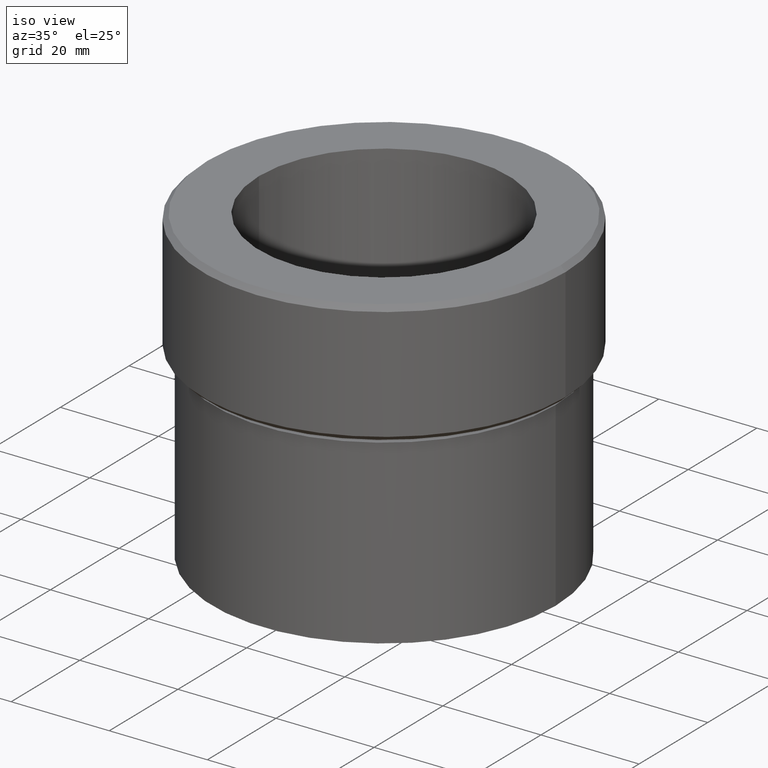
[diagram: clean part render]
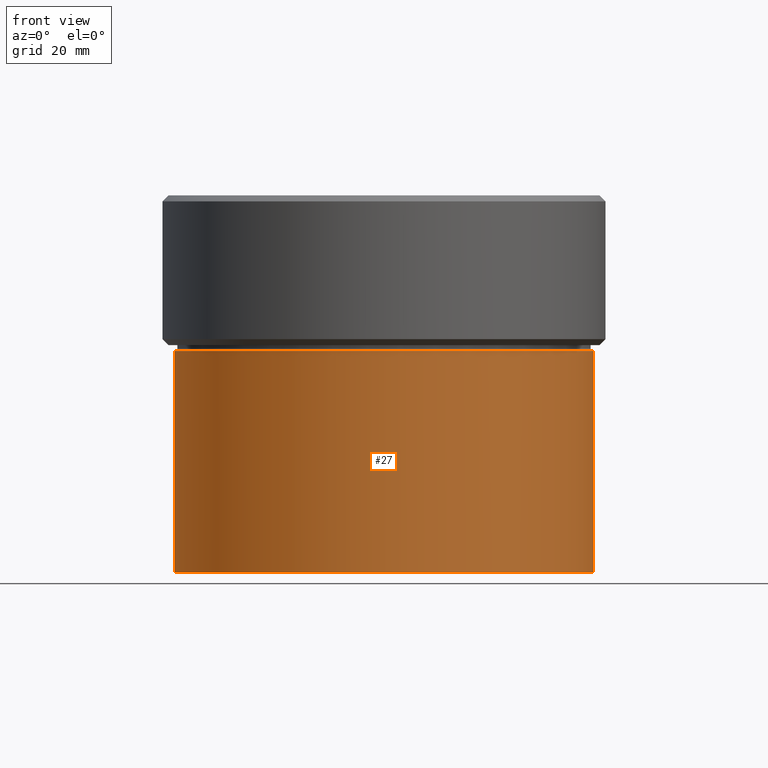
[diagram: tour spotlight — one face highlighted and labeled with its STEP entity id]
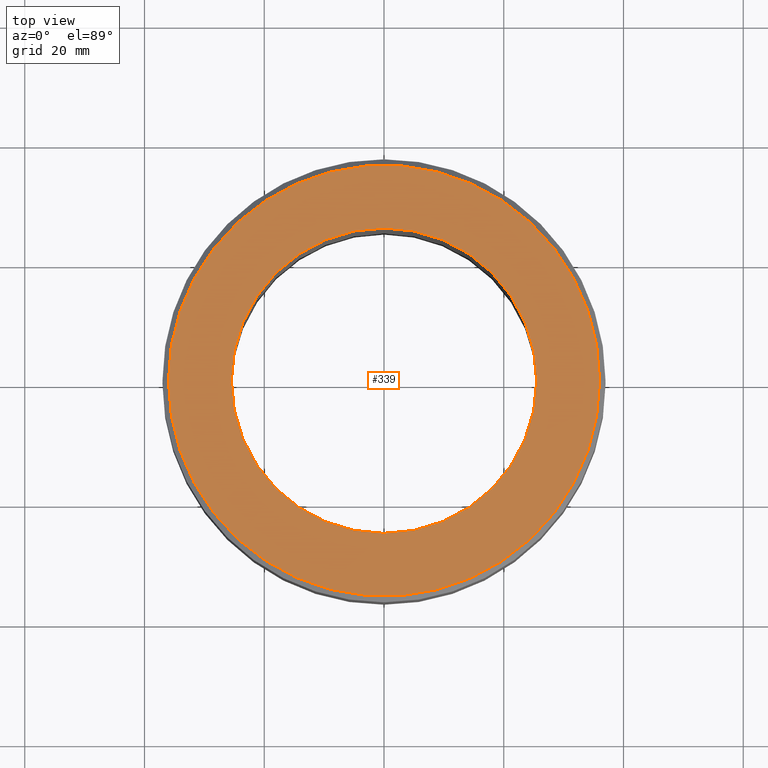
[diagram: tour spotlight — one face highlighted and labeled with its STEP entity id]
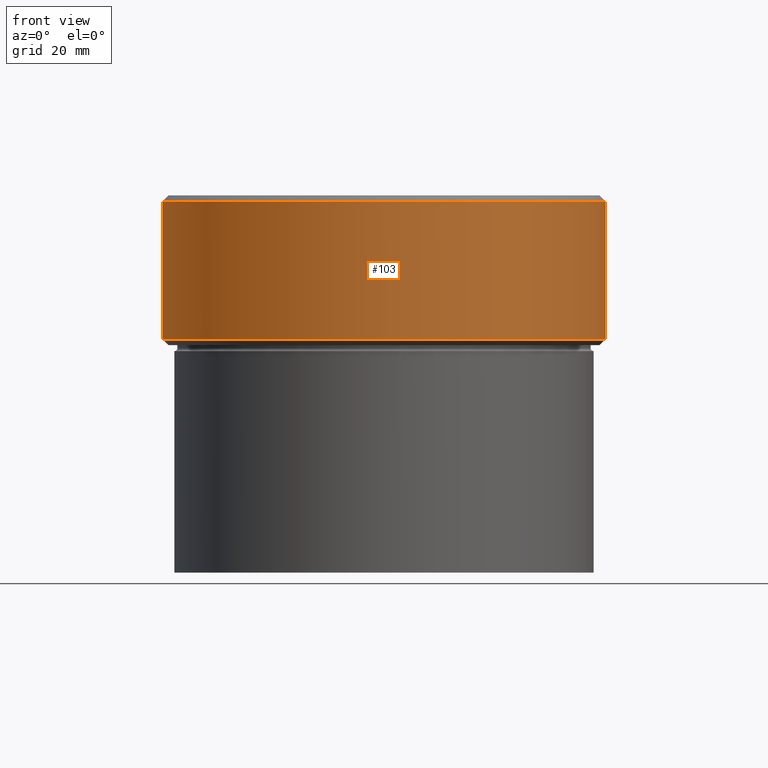
[diagram: tour spotlight — one face highlighted and labeled with its STEP entity id]
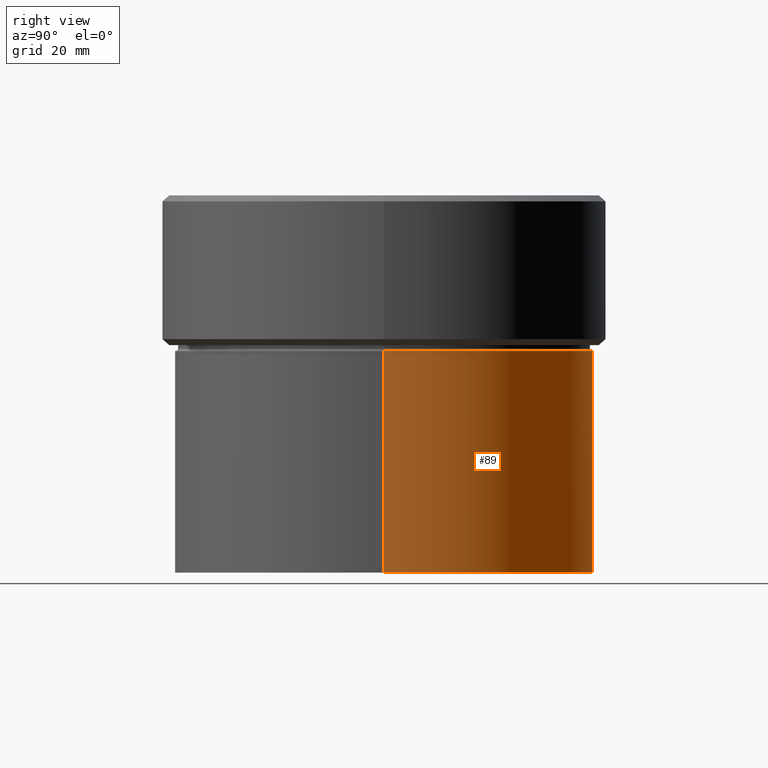
[diagram: tour spotlight — one face highlighted and labeled with its STEP entity id]
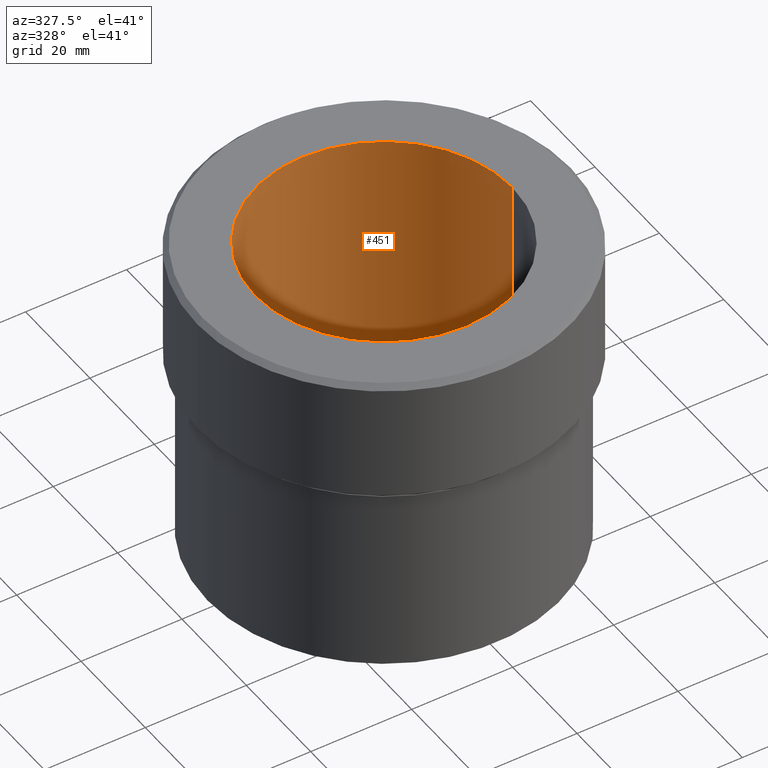
[diagram: tour spotlight — one face highlighted and labeled with its STEP entity id]
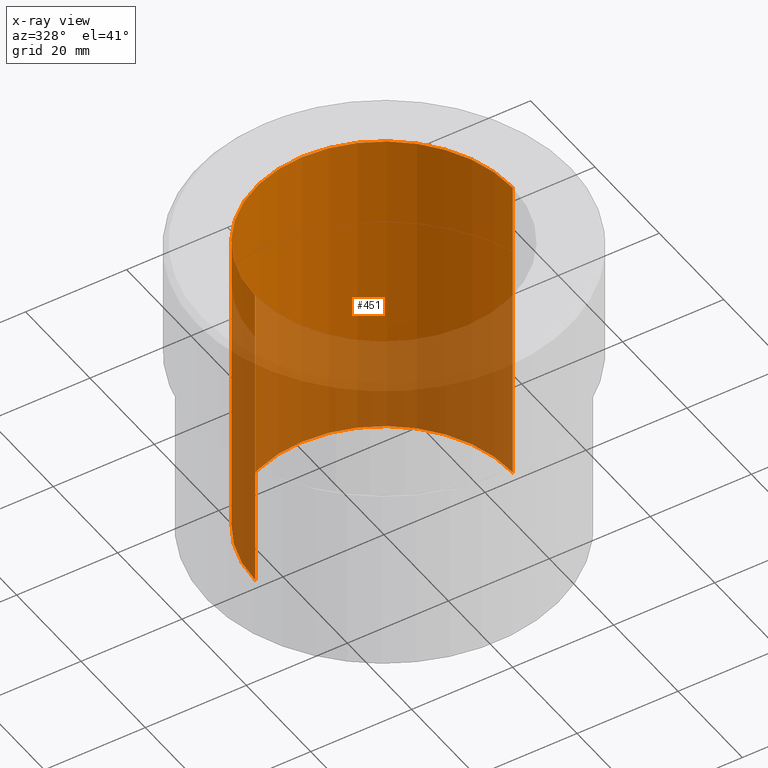
[diagram: x-ray of the same camera — body ghosted, this tour face saturated]
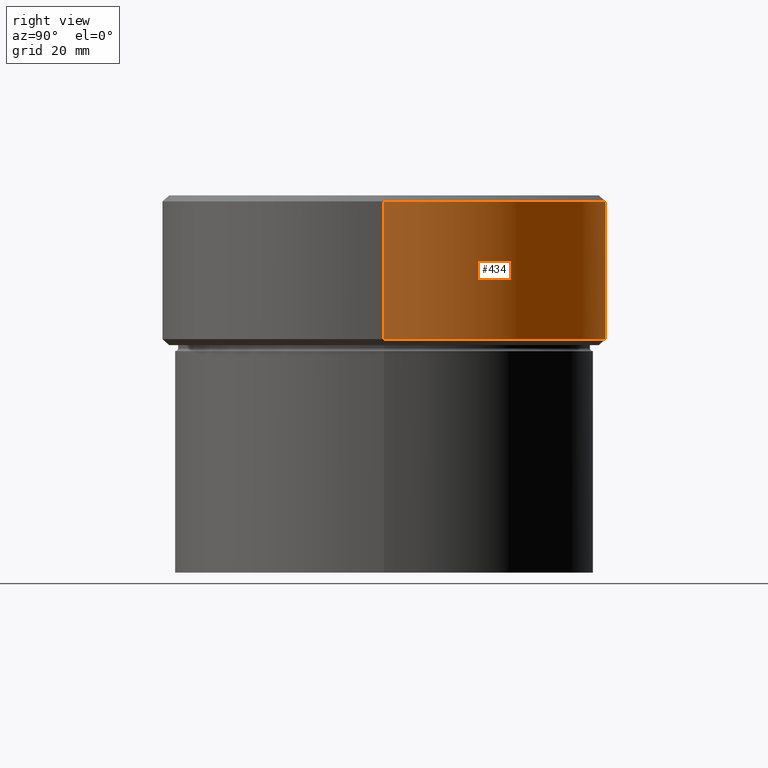
[diagram: tour spotlight — one face highlighted and labeled with its STEP entity id]
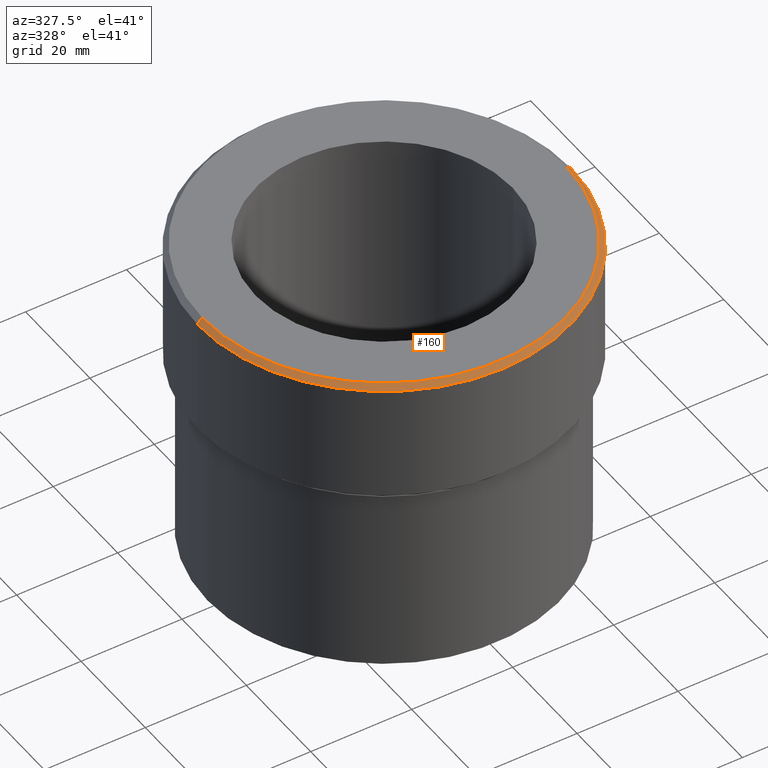
[diagram: tour spotlight — one face highlighted and labeled with its STEP entity id]
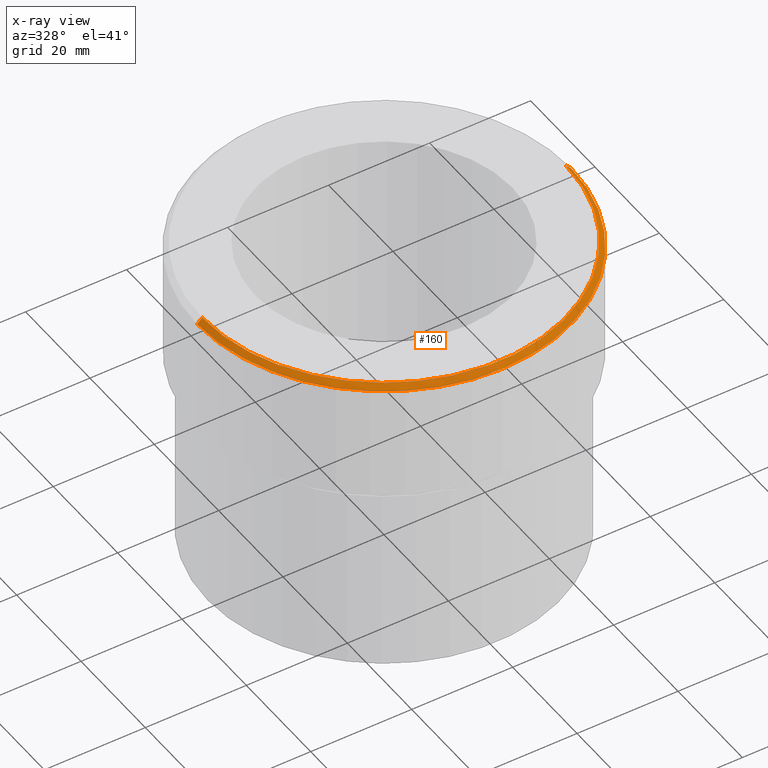
[diagram: x-ray of the same camera — body ghosted, this tour face saturated]
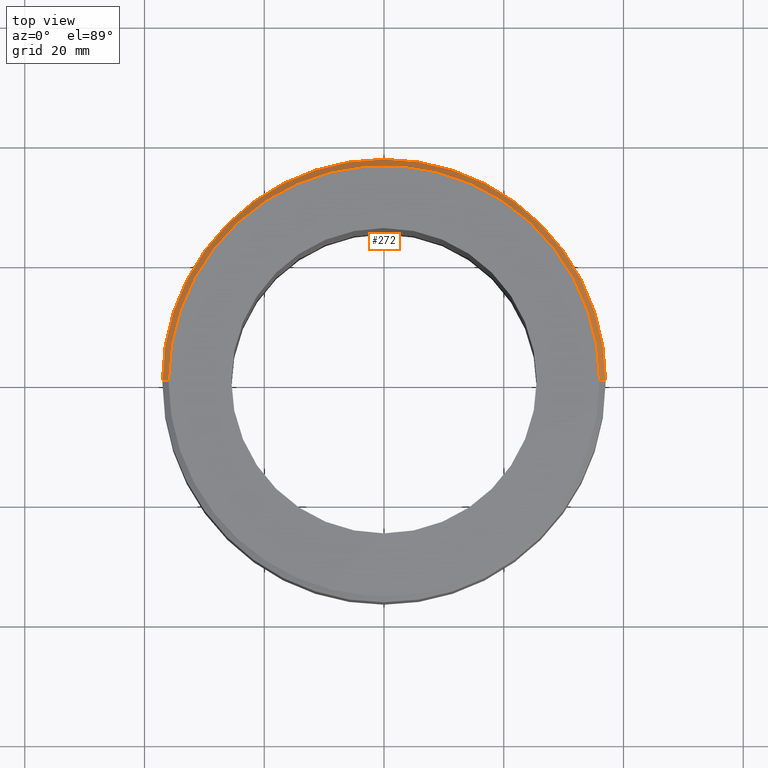
[diagram: tour spotlight — one face highlighted and labeled with its STEP entity id]
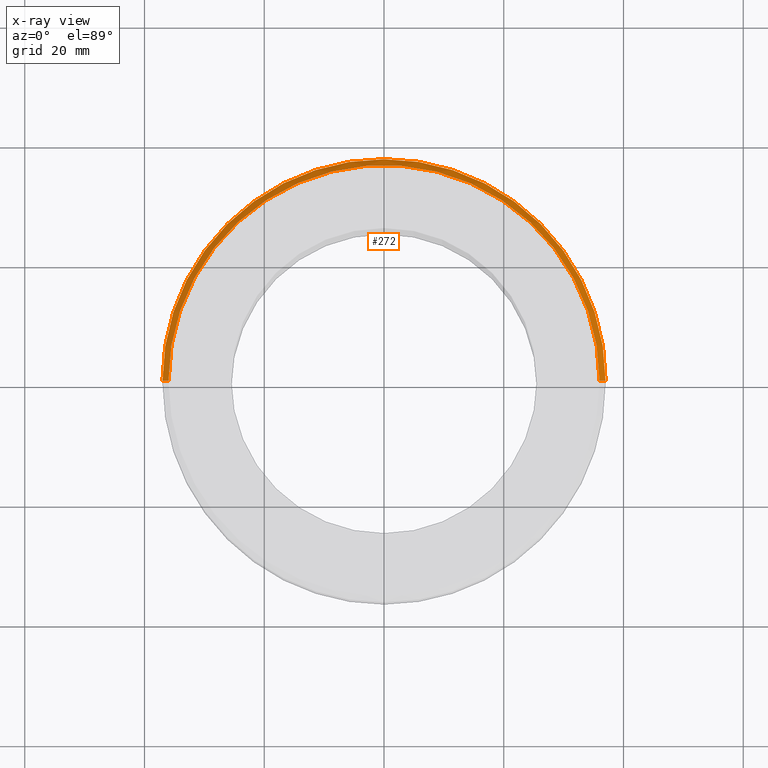
[diagram: x-ray of the same camera — body ghosted, this tour face saturated]
A machine part: a face-by-face anatomy tour. The part has 17 B-rep faces; the first image is the clean iso view, then the 8 largest visible faces are spotlighted one at a time (largest first), each with its STEP entity span.

Face 1 — front view, entity #27. In plain terms, the highlighted cylindrical surface (partial cylindrical patch) has radius 35 mm, axis along (-0, -0, 1).
Definition (entity closure, byte-faithful):
#19 = CARTESIAN_POINT ( 'NONE',  ( -35.00000000000000000, 4.286263797015736496E-15, -63.00000000000000000 ) ) ;
#20 = VECTOR ( 'NONE', #241, 1000.000000000000000 ) ;
#27 = ADVANCED_FACE ( 'NONE', ( #336 ), #296, .T. ) ;
#45 = LINE ( 'NONE', #450, #20 ) ;
#64 = VECTOR ( 'NONE', #484, 1000.000000000000000 ) ;
#81 = ORIENTED_EDGE ( 'NONE', *, *, #514, .F. ) ;
#82 = DIRECTION ( 'NONE',  ( 1.000000000000000000, 0.000000000000000000, 0.000000000000000000 ) ) ;
#101 = DIRECTION ( 'NONE',  ( 1.000000000000000000, 0.000000000000000000, 0.000000000000000000 ) ) ;
#139 = AXIS2_PLACEMENT_3D ( 'NONE', #408, #163, #82 ) ;
#143 = DIRECTION ( 'NONE',  ( 1.000000000000000000, 0.000000000000000000, 0.000000000000000000 ) ) ;
#155 = VERTEX_POINT ( 'NONE', #19 ) ;
#162 = ORIENTED_EDGE ( 'NONE', *, *, #440, .F. ) ;
#163 = DIRECTION ( 'NONE',  ( -0.000000000000000000, -0.000000000000000000, 1.000000000000000000 ) ) ;
#165 = EDGE_LOOP ( 'NONE', ( #162, #287, #238, #81 ) ) ;
#193 = CARTESIAN_POINT ( 'NONE',  ( 35.00000000000000000, 0.000000000000000000, -63.00000000000000000 ) ) ;
#197 = VERTEX_POINT ( 'NONE', #348 ) ;
#211 = AXIS2_PLACEMENT_3D ( 'NONE', #487, #214, #101 ) ;
#214 = DIRECTION ( 'NONE',  ( -0.000000000000000000, -0.000000000000000000, 1.000000000000000000 ) ) ;
#229 = CARTESIAN_POINT ( 'NONE',  ( 35.00000000000000000, 0.000000000000000000, 0.000000000000000000 ) ) ;
#233 = VERTEX_POINT ( 'NONE', #239 ) ;
#238 = ORIENTED_EDGE ( 'NONE', *, *, #309, .T. ) ;
#239 = CARTESIAN_POINT ( 'NONE',  ( 35.00000000000000000, 0.000000000000000000, -26.00000000000000000 ) ) ;
#241 = DIRECTION ( 'NONE',  ( -0.000000000000000000, -0.000000000000000000, 1.000000000000000000 ) ) ;
#262 = CIRCLE ( 'NONE', #139, 35.00000000000000000 ) ;
#287 = ORIENTED_EDGE ( 'NONE', *, *, #357, .T. ) ;
#292 = AXIS2_PLACEMENT_3D ( 'NONE', #343, #504, #143 ) ;
#296 = CYLINDRICAL_SURFACE ( 'NONE', #292, 35.00000000000000000 ) ;
#309 = EDGE_CURVE ( 'NONE', #331, #233, #356, .T. ) ;
#331 = VERTEX_POINT ( 'NONE', #193 ) ;
#336 = FACE_OUTER_BOUND ( 'NONE', #165, .T. ) ;
#343 = CARTESIAN_POINT ( 'NONE',  ( 0.000000000000000000, 0.000000000000000000, 0.000000000000000000 ) ) ;
#348 = CARTESIAN_POINT ( 'NONE',  ( -35.00000000000000000, 4.286263797015736496E-15, -26.00000000000000000 ) ) ;
#356 = LINE ( 'NONE', #229, #64 ) ;
#357 = EDGE_CURVE ( 'NONE', #155, #331, #262, .T. ) ;
#408 = CARTESIAN_POINT ( 'NONE',  ( 0.000000000000000000, 0.000000000000000000, -63.00000000000000000 ) ) ;
#440 = EDGE_CURVE ( 'NONE', #155, #197, #45, .T. ) ;
#446 = CIRCLE ( 'NONE', #211, 35.00000000000000000 ) ;
#450 = CARTESIAN_POINT ( 'NONE',  ( -35.00000000000000000, 4.286263797015736496E-15, 0.000000000000000000 ) ) ;
#484 = DIRECTION ( 'NONE',  ( -0.000000000000000000, -0.000000000000000000, 1.000000000000000000 ) ) ;
#487 = CARTESIAN_POINT ( 'NONE',  ( 0.000000000000000000, 0.000000000000000000, -26.00000000000000000 ) ) ;
#504 = DIRECTION ( 'NONE',  ( -0.000000000000000000, -0.000000000000000000, 1.000000000000000000 ) ) ;
#514 = EDGE_CURVE ( 'NONE', #197, #233, #446, .T. ) ;

Face 2 — top view, entity #339. In plain terms, the highlighted planar face has unit normal (0, -0, 1).
Definition (entity closure, byte-faithful):
#8 = ORIENTED_EDGE ( 'NONE', *, *, #285, .F. ) ;
#23 = FACE_OUTER_BOUND ( 'NONE', #148, .T. ) ;
#41 = VERTEX_POINT ( 'NONE', #53 ) ;
#53 = CARTESIAN_POINT ( 'NONE',  ( 36.00000000000002132, 4.469960816887840007E-15, 0.000000000000000000 ) ) ;
#66 = CARTESIAN_POINT ( 'NONE',  ( 25.50000000000000000, 0.000000000000000000, 0.000000000000000000 ) ) ;
#69 = EDGE_CURVE ( 'NONE', #313, #274, #444, .T. ) ;
#76 = CARTESIAN_POINT ( 'NONE',  ( -25.50000000000000000, 3.122849337825750222E-15, 0.000000000000000000 ) ) ;
#90 = DIRECTION ( 'NONE',  ( -0.000000000000000000, -0.000000000000000000, 1.000000000000000000 ) ) ;
#116 = ORIENTED_EDGE ( 'NONE', *, *, #69, .F. ) ;
#148 = EDGE_LOOP ( 'NONE', ( #481, #368 ) ) ;
#150 = VERTEX_POINT ( 'NONE', #383 ) ;
#178 = EDGE_CURVE ( 'NONE', #41, #150, #494, .T. ) ;
#182 = AXIS2_PLACEMENT_3D ( 'NONE', #298, #215, #380 ) ;
#215 = DIRECTION ( 'NONE',  ( -0.000000000000000000, -0.000000000000000000, 1.000000000000000000 ) ) ;
#225 = AXIS2_PLACEMENT_3D ( 'NONE', #435, #314, #447 ) ;
#237 = DIRECTION ( 'NONE',  ( -0.000000000000000000, -0.000000000000000000, 1.000000000000000000 ) ) ;
#258 = DIRECTION ( 'NONE',  ( 1.000000000000000000, 0.000000000000000000, 0.000000000000000000 ) ) ;
#260 = EDGE_CURVE ( 'NONE', #150, #41, #361, .T. ) ;
#270 = DIRECTION ( 'NONE',  ( 0.000000000000000000, -0.000000000000000000, 1.000000000000000000 ) ) ;
#274 = VERTEX_POINT ( 'NONE', #66 ) ;
#280 = AXIS2_PLACEMENT_3D ( 'NONE', #346, #90, #258 ) ;
#285 = EDGE_CURVE ( 'NONE', #274, #313, #426, .T. ) ;
#298 = CARTESIAN_POINT ( 'NONE',  ( 0.000000000000000000, 0.000000000000000000, 0.000000000000000000 ) ) ;
#310 = CARTESIAN_POINT ( 'NONE',  ( 0.000000000000000000, 0.000000000000000000, 0.000000000000000000 ) ) ;
#313 = VERTEX_POINT ( 'NONE', #76 ) ;
#314 = DIRECTION ( 'NONE',  ( -0.000000000000000000, -0.000000000000000000, 1.000000000000000000 ) ) ;
#339 = ADVANCED_FACE ( 'NONE', ( #525, #23 ), #519, .T. ) ;
#346 = CARTESIAN_POINT ( 'NONE',  ( 0.000000000000000000, 0.000000000000000000, 0.000000000000000000 ) ) ;
#361 = CIRCLE ( 'NONE', #369, 36.00000000000002132 ) ;
#368 = ORIENTED_EDGE ( 'NONE', *, *, #178, .T. ) ;
#369 = AXIS2_PLACEMENT_3D ( 'NONE', #517, #237, #521 ) ;
#380 = DIRECTION ( 'NONE',  ( 1.000000000000000000, 0.000000000000000000, 0.000000000000000000 ) ) ;
#383 = CARTESIAN_POINT ( 'NONE',  ( -36.00000000000002132, 0.000000000000000000, 0.000000000000000000 ) ) ;
#415 = AXIS2_PLACEMENT_3D ( 'NONE', #310, #270, #438 ) ;
#426 = CIRCLE ( 'NONE', #225, 25.50000000000000000 ) ;
#435 = CARTESIAN_POINT ( 'NONE',  ( 0.000000000000000000, 0.000000000000000000, 0.000000000000000000 ) ) ;
#438 = DIRECTION ( 'NONE',  ( 1.000000000000000000, 0.000000000000000000, 0.000000000000000000 ) ) ;
#444 = CIRCLE ( 'NONE', #182, 25.50000000000000000 ) ;
#447 = DIRECTION ( 'NONE',  ( 1.000000000000000000, 0.000000000000000000, 0.000000000000000000 ) ) ;
#481 = ORIENTED_EDGE ( 'NONE', *, *, #260, .T. ) ;
#488 = EDGE_LOOP ( 'NONE', ( #8, #116 ) ) ;
#494 = CIRCLE ( 'NONE', #280, 36.00000000000002132 ) ;
#517 = CARTESIAN_POINT ( 'NONE',  ( 0.000000000000000000, 0.000000000000000000, 0.000000000000000000 ) ) ;
#519 = PLANE ( 'NONE',  #415 ) ;
#521 = DIRECTION ( 'NONE',  ( 1.000000000000000000, 0.000000000000000000, 0.000000000000000000 ) ) ;
#525 = FACE_BOUND ( 'NONE', #488, .T. ) ;

Face 3 — front view, entity #103. In plain terms, the highlighted cylindrical surface (partial cylindrical patch) has radius 37 mm, axis along (-0, -0, 1).
Definition (entity closure, byte-faithful):
#4 = EDGE_CURVE ( 'NONE', #83, #497, #168, .T. ) ;
#6 = ORIENTED_EDGE ( 'NONE', *, *, #334, .T. ) ;
#9 = DIRECTION ( 'NONE',  ( 1.000000000000000000, 0.000000000000000000, 0.000000000000000000 ) ) ;
#21 = AXIS2_PLACEMENT_3D ( 'NONE', #22, #100, #174 ) ;
#22 = CARTESIAN_POINT ( 'NONE',  ( 0.000000000000000000, 0.000000000000000000, 0.000000000000000000 ) ) ;
#31 = VERTEX_POINT ( 'NONE', #263 ) ;
#36 = ORIENTED_EDGE ( 'NONE', *, *, #4, .F. ) ;
#59 = EDGE_CURVE ( 'NONE', #83, #390, #254, .T. ) ;
#83 = VERTEX_POINT ( 'NONE', #378 ) ;
#100 = DIRECTION ( 'NONE',  ( -0.000000000000000000, -0.000000000000000000, 1.000000000000000000 ) ) ;
#103 = ADVANCED_FACE ( 'NONE', ( #427 ), #387, .T. ) ;
#127 = EDGE_LOOP ( 'NONE', ( #36, #375, #6, #311 ) ) ;
#158 = CARTESIAN_POINT ( 'NONE',  ( 0.000000000000000000, 0.000000000000000000, -0.9999999999999870104 ) ) ;
#168 = LINE ( 'NONE', #321, #460 ) ;
#174 = DIRECTION ( 'NONE',  ( 1.000000000000000000, 0.000000000000000000, 0.000000000000000000 ) ) ;
#226 = AXIS2_PLACEMENT_3D ( 'NONE', #305, #513, #467 ) ;
#244 = CARTESIAN_POINT ( 'NONE',  ( 37.00000000000000000, 0.000000000000000000, -23.99999999999997158 ) ) ;
#252 = VECTOR ( 'NONE', #307, 1000.000000000000000 ) ;
#254 = CIRCLE ( 'NONE', #226, 37.00000000000000000 ) ;
#263 = CARTESIAN_POINT ( 'NONE',  ( 37.00000000000000000, 0.000000000000000000, -0.9999999999999870104 ) ) ;
#301 = AXIS2_PLACEMENT_3D ( 'NONE', #158, #490, #9 ) ;
#305 = CARTESIAN_POINT ( 'NONE',  ( 0.000000000000000000, 0.000000000000000000, -23.99999999999997158 ) ) ;
#307 = DIRECTION ( 'NONE',  ( -0.000000000000000000, -0.000000000000000000, 1.000000000000000000 ) ) ;
#311 = ORIENTED_EDGE ( 'NONE', *, *, #457, .T. ) ;
#316 = CIRCLE ( 'NONE', #301, 37.00000000000000000 ) ;
#321 = CARTESIAN_POINT ( 'NONE',  ( -37.00000000000000000, 4.531193156845206793E-15, 0.000000000000000000 ) ) ;
#334 = EDGE_CURVE ( 'NONE', #390, #31, #476, .T. ) ;
#359 = CARTESIAN_POINT ( 'NONE',  ( 37.00000000000000000, 0.000000000000000000, 0.000000000000000000 ) ) ;
#375 = ORIENTED_EDGE ( 'NONE', *, *, #59, .T. ) ;
#378 = CARTESIAN_POINT ( 'NONE',  ( -37.00000000000000000, 4.531193156845206793E-15, -23.99999999999997158 ) ) ;
#387 = CYLINDRICAL_SURFACE ( 'NONE', #21, 37.00000000000000000 ) ;
#390 = VERTEX_POINT ( 'NONE', #244 ) ;
#403 = DIRECTION ( 'NONE',  ( -0.000000000000000000, -0.000000000000000000, 1.000000000000000000 ) ) ;
#404 = CARTESIAN_POINT ( 'NONE',  ( -37.00000000000000000, 4.531193156845206793E-15, -0.9999999999999870104 ) ) ;
#427 = FACE_OUTER_BOUND ( 'NONE', #127, .T. ) ;
#457 = EDGE_CURVE ( 'NONE', #31, #497, #316, .T. ) ;
#460 = VECTOR ( 'NONE', #403, 1000.000000000000000 ) ;
#467 = DIRECTION ( 'NONE',  ( -1.000000000000000000, 0.000000000000000000, 0.000000000000000000 ) ) ;
#476 = LINE ( 'NONE', #359, #252 ) ;
#490 = DIRECTION ( 'NONE',  ( 0.000000000000000000, 0.000000000000000000, -1.000000000000000000 ) ) ;
#497 = VERTEX_POINT ( 'NONE', #404 ) ;
#513 = DIRECTION ( 'NONE',  ( -0.000000000000000000, -0.000000000000000000, 1.000000000000000000 ) ) ;

Face 4 — right view, entity #89. In plain terms, the highlighted cylindrical surface (partial cylindrical patch) has radius 35 mm, axis along (-0, -0, 1).
Definition (entity closure, byte-faithful):
#13 = EDGE_CURVE ( 'NONE', #233, #197, #140, .T. ) ;
#19 = CARTESIAN_POINT ( 'NONE',  ( -35.00000000000000000, 4.286263797015736496E-15, -63.00000000000000000 ) ) ;
#20 = VECTOR ( 'NONE', #241, 1000.000000000000000 ) ;
#26 = CARTESIAN_POINT ( 'NONE',  ( 0.000000000000000000, 0.000000000000000000, -63.00000000000000000 ) ) ;
#34 = DIRECTION ( 'NONE',  ( 1.000000000000000000, 0.000000000000000000, 0.000000000000000000 ) ) ;
#38 = DIRECTION ( 'NONE',  ( 1.000000000000000000, 0.000000000000000000, 0.000000000000000000 ) ) ;
#44 = EDGE_LOOP ( 'NONE', ( #358, #520, #109, #105 ) ) ;
#45 = LINE ( 'NONE', #450, #20 ) ;
#64 = VECTOR ( 'NONE', #484, 1000.000000000000000 ) ;
#89 = ADVANCED_FACE ( 'NONE', ( #261 ), #306, .T. ) ;
#105 = ORIENTED_EDGE ( 'NONE', *, *, #309, .F. ) ;
#109 = ORIENTED_EDGE ( 'NONE', *, *, #13, .F. ) ;
#112 = CIRCLE ( 'NONE', #486, 35.00000000000000000 ) ;
#133 = CARTESIAN_POINT ( 'NONE',  ( 0.000000000000000000, 0.000000000000000000, 0.000000000000000000 ) ) ;
#140 = CIRCLE ( 'NONE', #414, 35.00000000000000000 ) ;
#155 = VERTEX_POINT ( 'NONE', #19 ) ;
#193 = CARTESIAN_POINT ( 'NONE',  ( 35.00000000000000000, 0.000000000000000000, -63.00000000000000000 ) ) ;
#197 = VERTEX_POINT ( 'NONE', #348 ) ;
#229 = CARTESIAN_POINT ( 'NONE',  ( 35.00000000000000000, 0.000000000000000000, 0.000000000000000000 ) ) ;
#233 = VERTEX_POINT ( 'NONE', #239 ) ;
#239 = CARTESIAN_POINT ( 'NONE',  ( 35.00000000000000000, 0.000000000000000000, -26.00000000000000000 ) ) ;
#241 = DIRECTION ( 'NONE',  ( -0.000000000000000000, -0.000000000000000000, 1.000000000000000000 ) ) ;
#261 = FACE_OUTER_BOUND ( 'NONE', #44, .T. ) ;
#267 = AXIS2_PLACEMENT_3D ( 'NONE', #133, #465, #509 ) ;
#306 = CYLINDRICAL_SURFACE ( 'NONE', #267, 35.00000000000000000 ) ;
#309 = EDGE_CURVE ( 'NONE', #331, #233, #356, .T. ) ;
#323 = EDGE_CURVE ( 'NONE', #331, #155, #112, .T. ) ;
#331 = VERTEX_POINT ( 'NONE', #193 ) ;
#348 = CARTESIAN_POINT ( 'NONE',  ( -35.00000000000000000, 4.286263797015736496E-15, -26.00000000000000000 ) ) ;
#351 = DIRECTION ( 'NONE',  ( -0.000000000000000000, -0.000000000000000000, 1.000000000000000000 ) ) ;
#356 = LINE ( 'NONE', #229, #64 ) ;
#358 = ORIENTED_EDGE ( 'NONE', *, *, #323, .T. ) ;
#409 = CARTESIAN_POINT ( 'NONE',  ( 0.000000000000000000, 0.000000000000000000, -26.00000000000000000 ) ) ;
#414 = AXIS2_PLACEMENT_3D ( 'NONE', #409, #531, #38 ) ;
#440 = EDGE_CURVE ( 'NONE', #155, #197, #45, .T. ) ;
#450 = CARTESIAN_POINT ( 'NONE',  ( -35.00000000000000000, 4.286263797015736496E-15, 0.000000000000000000 ) ) ;
#465 = DIRECTION ( 'NONE',  ( -0.000000000000000000, -0.000000000000000000, 1.000000000000000000 ) ) ;
#484 = DIRECTION ( 'NONE',  ( -0.000000000000000000, -0.000000000000000000, 1.000000000000000000 ) ) ;
#486 = AXIS2_PLACEMENT_3D ( 'NONE', #26, #351, #34 ) ;
#509 = DIRECTION ( 'NONE',  ( 1.000000000000000000, 0.000000000000000000, 0.000000000000000000 ) ) ;
#520 = ORIENTED_EDGE ( 'NONE', *, *, #440, .T. ) ;
#531 = DIRECTION ( 'NONE',  ( -0.000000000000000000, -0.000000000000000000, 1.000000000000000000 ) ) ;

Face 5 — auxiliary view, entity #451. An x-ray twin of the same camera follows (body ghosted, this face saturated) — the face is partly hidden behind the body. In plain terms, the highlighted cylindrical surface (partial cylindrical patch) has radius 25.5 mm, axis along (-0, -0, 1).
Definition (entity closure, byte-faithful):
#12 = CARTESIAN_POINT ( 'NONE',  ( 25.50000000000000000, 0.000000000000000000, -63.00000000000000000 ) ) ;
#66 = CARTESIAN_POINT ( 'NONE',  ( 25.50000000000000000, 0.000000000000000000, 0.000000000000000000 ) ) ;
#70 = LINE ( 'NONE', #232, #412 ) ;
#71 = ORIENTED_EDGE ( 'NONE', *, *, #350, .T. ) ;
#74 = VECTOR ( 'NONE', #499, 1000.000000000000000 ) ;
#76 = CARTESIAN_POINT ( 'NONE',  ( -25.50000000000000000, 3.122849337825750222E-15, 0.000000000000000000 ) ) ;
#77 = VERTEX_POINT ( 'NONE', #12 ) ;
#78 = FACE_OUTER_BOUND ( 'NONE', #454, .T. ) ;
#84 = DIRECTION ( 'NONE',  ( -0.000000000000000000, -0.000000000000000000, 1.000000000000000000 ) ) ;
#86 = CYLINDRICAL_SURFACE ( 'NONE', #495, 25.50000000000000000 ) ;
#111 = CARTESIAN_POINT ( 'NONE',  ( -25.50000000000000000, 3.122849337825750222E-15, -63.00000000000000000 ) ) ;
#153 = ORIENTED_EDGE ( 'NONE', *, *, #480, .F. ) ;
#183 = CIRCLE ( 'NONE', #353, 25.50000000000000000 ) ;
#201 = ORIENTED_EDGE ( 'NONE', *, *, #285, .T. ) ;
#206 = VERTEX_POINT ( 'NONE', #111 ) ;
#225 = AXIS2_PLACEMENT_3D ( 'NONE', #435, #314, #447 ) ;
#232 = CARTESIAN_POINT ( 'NONE',  ( 25.50000000000000000, 0.000000000000000000, -80.00000000000000000 ) ) ;
#274 = VERTEX_POINT ( 'NONE', #66 ) ;
#285 = EDGE_CURVE ( 'NONE', #274, #313, #426, .T. ) ;
#286 = CARTESIAN_POINT ( 'NONE',  ( 0.000000000000000000, 0.000000000000000000, -80.00000000000000000 ) ) ;
#313 = VERTEX_POINT ( 'NONE', #76 ) ;
#314 = DIRECTION ( 'NONE',  ( -0.000000000000000000, -0.000000000000000000, 1.000000000000000000 ) ) ;
#318 = LINE ( 'NONE', #330, #74 ) ;
#328 = DIRECTION ( 'NONE',  ( 0.000000000000000000, 0.000000000000000000, -1.000000000000000000 ) ) ;
#330 = CARTESIAN_POINT ( 'NONE',  ( -25.50000000000000000, 3.122849337825750222E-15, -80.00000000000000000 ) ) ;
#350 = EDGE_CURVE ( 'NONE', #77, #274, #70, .T. ) ;
#353 = AXIS2_PLACEMENT_3D ( 'NONE', #367, #328, #402 ) ;
#363 = ORIENTED_EDGE ( 'NONE', *, *, #366, .T. ) ;
#366 = EDGE_CURVE ( 'NONE', #206, #77, #183, .T. ) ;
#367 = CARTESIAN_POINT ( 'NONE',  ( 0.000000000000000000, 0.000000000000000000, -63.00000000000000000 ) ) ;
#394 = DIRECTION ( 'NONE',  ( -0.000000000000000000, -0.000000000000000000, 1.000000000000000000 ) ) ;
#402 = DIRECTION ( 'NONE',  ( -1.000000000000000000, 0.000000000000000000, 0.000000000000000000 ) ) ;
#412 = VECTOR ( 'NONE', #394, 1000.000000000000000 ) ;
#426 = CIRCLE ( 'NONE', #225, 25.50000000000000000 ) ;
#435 = CARTESIAN_POINT ( 'NONE',  ( 0.000000000000000000, 0.000000000000000000, 0.000000000000000000 ) ) ;
#447 = DIRECTION ( 'NONE',  ( 1.000000000000000000, 0.000000000000000000, 0.000000000000000000 ) ) ;
#451 = ADVANCED_FACE ( 'NONE', ( #78 ), #86, .F. ) ;
#454 = EDGE_LOOP ( 'NONE', ( #153, #363, #71, #201 ) ) ;
#480 = EDGE_CURVE ( 'NONE', #206, #313, #318, .T. ) ;
#495 = AXIS2_PLACEMENT_3D ( 'NONE', #286, #84, #530 ) ;
#499 = DIRECTION ( 'NONE',  ( -0.000000000000000000, -0.000000000000000000, 1.000000000000000000 ) ) ;
#530 = DIRECTION ( 'NONE',  ( 1.000000000000000000, 0.000000000000000000, 0.000000000000000000 ) ) ;

Face 6 — right view, entity #434. In plain terms, the highlighted cylindrical surface (partial cylindrical patch) has radius 37 mm, axis along (-0, -0, 1).
Definition (entity closure, byte-faithful):
#4 = EDGE_CURVE ( 'NONE', #83, #497, #168, .T. ) ;
#7 = CARTESIAN_POINT ( 'NONE',  ( 0.000000000000000000, 0.000000000000000000, -0.9999999999999870104 ) ) ;
#31 = VERTEX_POINT ( 'NONE', #263 ) ;
#55 = AXIS2_PLACEMENT_3D ( 'NONE', #147, #523, #68 ) ;
#68 = DIRECTION ( 'NONE',  ( -1.000000000000000000, 0.000000000000000000, 0.000000000000000000 ) ) ;
#80 = DIRECTION ( 'NONE',  ( -0.000000000000000000, -0.000000000000000000, 1.000000000000000000 ) ) ;
#83 = VERTEX_POINT ( 'NONE', #378 ) ;
#119 = FACE_OUTER_BOUND ( 'NONE', #213, .T. ) ;
#121 = ORIENTED_EDGE ( 'NONE', *, *, #406, .T. ) ;
#147 = CARTESIAN_POINT ( 'NONE',  ( 0.000000000000000000, 0.000000000000000000, -23.99999999999997158 ) ) ;
#167 = DIRECTION ( 'NONE',  ( 1.000000000000000000, 0.000000000000000000, 0.000000000000000000 ) ) ;
#168 = LINE ( 'NONE', #321, #460 ) ;
#213 = EDGE_LOOP ( 'NONE', ( #329, #437, #121, #243 ) ) ;
#243 = ORIENTED_EDGE ( 'NONE', *, *, #334, .F. ) ;
#244 = CARTESIAN_POINT ( 'NONE',  ( 37.00000000000000000, 0.000000000000000000, -23.99999999999997158 ) ) ;
#252 = VECTOR ( 'NONE', #307, 1000.000000000000000 ) ;
#263 = CARTESIAN_POINT ( 'NONE',  ( 37.00000000000000000, 0.000000000000000000, -0.9999999999999870104 ) ) ;
#302 = EDGE_CURVE ( 'NONE', #390, #83, #342, .T. ) ;
#307 = DIRECTION ( 'NONE',  ( -0.000000000000000000, -0.000000000000000000, 1.000000000000000000 ) ) ;
#321 = CARTESIAN_POINT ( 'NONE',  ( -37.00000000000000000, 4.531193156845206793E-15, 0.000000000000000000 ) ) ;
#329 = ORIENTED_EDGE ( 'NONE', *, *, #302, .T. ) ;
#334 = EDGE_CURVE ( 'NONE', #390, #31, #476, .T. ) ;
#342 = CIRCLE ( 'NONE', #55, 37.00000000000000000 ) ;
#359 = CARTESIAN_POINT ( 'NONE',  ( 37.00000000000000000, 0.000000000000000000, 0.000000000000000000 ) ) ;
#362 = DIRECTION ( 'NONE',  ( 0.000000000000000000, 0.000000000000000000, -1.000000000000000000 ) ) ;
#364 = CYLINDRICAL_SURFACE ( 'NONE', #469, 37.00000000000000000 ) ;
#378 = CARTESIAN_POINT ( 'NONE',  ( -37.00000000000000000, 4.531193156845206793E-15, -23.99999999999997158 ) ) ;
#390 = VERTEX_POINT ( 'NONE', #244 ) ;
#397 = CIRCLE ( 'NONE', #510, 37.00000000000000000 ) ;
#403 = DIRECTION ( 'NONE',  ( -0.000000000000000000, -0.000000000000000000, 1.000000000000000000 ) ) ;
#404 = CARTESIAN_POINT ( 'NONE',  ( -37.00000000000000000, 4.531193156845206793E-15, -0.9999999999999870104 ) ) ;
#406 = EDGE_CURVE ( 'NONE', #497, #31, #397, .T. ) ;
#410 = DIRECTION ( 'NONE',  ( 1.000000000000000000, 0.000000000000000000, 0.000000000000000000 ) ) ;
#434 = ADVANCED_FACE ( 'NONE', ( #119 ), #364, .T. ) ;
#437 = ORIENTED_EDGE ( 'NONE', *, *, #4, .T. ) ;
#449 = CARTESIAN_POINT ( 'NONE',  ( 0.000000000000000000, 0.000000000000000000, 0.000000000000000000 ) ) ;
#460 = VECTOR ( 'NONE', #403, 1000.000000000000000 ) ;
#469 = AXIS2_PLACEMENT_3D ( 'NONE', #449, #80, #167 ) ;
#476 = LINE ( 'NONE', #359, #252 ) ;
#497 = VERTEX_POINT ( 'NONE', #404 ) ;
#510 = AXIS2_PLACEMENT_3D ( 'NONE', #7, #362, #410 ) ;
#523 = DIRECTION ( 'NONE',  ( -0.000000000000000000, -0.000000000000000000, 1.000000000000000000 ) ) ;

Face 7 — auxiliary view, entity #160. An x-ray twin of the same camera follows (body ghosted, this face saturated) — the face is partly hidden behind the body. In plain terms, the highlighted conical surface has half-angle 45 deg.
Definition (entity closure, byte-faithful):
#9 = DIRECTION ( 'NONE',  ( 1.000000000000000000, 0.000000000000000000, 0.000000000000000000 ) ) ;
#31 = VERTEX_POINT ( 'NONE', #263 ) ;
#41 = VERTEX_POINT ( 'NONE', #53 ) ;
#46 = EDGE_LOOP ( 'NONE', ( #279, #518, #448, #405 ) ) ;
#51 = EDGE_CURVE ( 'NONE', #41, #31, #216, .T. ) ;
#53 = CARTESIAN_POINT ( 'NONE',  ( 36.00000000000002132, 4.469960816887840007E-15, 0.000000000000000000 ) ) ;
#54 = CONICAL_SURFACE ( 'NONE', #388, 36.00000000000002132, 0.7853981633974447263 ) ;
#63 = CARTESIAN_POINT ( 'NONE',  ( 0.000000000000000000, 0.000000000000000000, 0.000000000000000000 ) ) ;
#136 = DIRECTION ( 'NONE',  ( 0.7071067811865451302, 8.659560562354904508E-17, -0.7071067811865500152 ) ) ;
#150 = VERTEX_POINT ( 'NONE', #383 ) ;
#156 = VECTOR ( 'NONE', #136, 1000.000000000000114 ) ;
#158 = CARTESIAN_POINT ( 'NONE',  ( 0.000000000000000000, 0.000000000000000000, -0.9999999999999870104 ) ) ;
#160 = ADVANCED_FACE ( 'NONE', ( #181 ), #54, .T. ) ;
#164 = VECTOR ( 'NONE', #392, 1000.000000000000114 ) ;
#181 = FACE_OUTER_BOUND ( 'NONE', #46, .T. ) ;
#184 = DIRECTION ( 'NONE',  ( -1.000000000000000000, 0.000000000000000000, 0.000000000000000000 ) ) ;
#190 = LINE ( 'NONE', #482, #164 ) ;
#208 = EDGE_CURVE ( 'NONE', #150, #497, #190, .T. ) ;
#216 = LINE ( 'NONE', #300, #156 ) ;
#224 = DIRECTION ( 'NONE',  ( 0.000000000000000000, 0.000000000000000000, -1.000000000000000000 ) ) ;
#237 = DIRECTION ( 'NONE',  ( -0.000000000000000000, -0.000000000000000000, 1.000000000000000000 ) ) ;
#260 = EDGE_CURVE ( 'NONE', #150, #41, #361, .T. ) ;
#263 = CARTESIAN_POINT ( 'NONE',  ( 37.00000000000000000, 0.000000000000000000, -0.9999999999999870104 ) ) ;
#279 = ORIENTED_EDGE ( 'NONE', *, *, #51, .F. ) ;
#300 = CARTESIAN_POINT ( 'NONE',  ( 36.00000000000002132, 4.408728476930474011E-15, 0.000000000000000000 ) ) ;
#301 = AXIS2_PLACEMENT_3D ( 'NONE', #158, #490, #9 ) ;
#316 = CIRCLE ( 'NONE', #301, 37.00000000000000000 ) ;
#361 = CIRCLE ( 'NONE', #369, 36.00000000000002132 ) ;
#369 = AXIS2_PLACEMENT_3D ( 'NONE', #517, #237, #521 ) ;
#383 = CARTESIAN_POINT ( 'NONE',  ( -36.00000000000002132, 0.000000000000000000, 0.000000000000000000 ) ) ;
#388 = AXIS2_PLACEMENT_3D ( 'NONE', #63, #224, #184 ) ;
#392 = DIRECTION ( 'NONE',  ( -0.7071067811865451302, 0.000000000000000000, -0.7071067811865500152 ) ) ;
#404 = CARTESIAN_POINT ( 'NONE',  ( -37.00000000000000000, 4.531193156845206793E-15, -0.9999999999999870104 ) ) ;
#405 = ORIENTED_EDGE ( 'NONE', *, *, #457, .F. ) ;
#448 = ORIENTED_EDGE ( 'NONE', *, *, #208, .T. ) ;
#457 = EDGE_CURVE ( 'NONE', #31, #497, #316, .T. ) ;
#482 = CARTESIAN_POINT ( 'NONE',  ( -36.00000000000002132, 0.000000000000000000, 0.000000000000000000 ) ) ;
#490 = DIRECTION ( 'NONE',  ( 0.000000000000000000, 0.000000000000000000, -1.000000000000000000 ) ) ;
#497 = VERTEX_POINT ( 'NONE', #404 ) ;
#517 = CARTESIAN_POINT ( 'NONE',  ( 0.000000000000000000, 0.000000000000000000, 0.000000000000000000 ) ) ;
#518 = ORIENTED_EDGE ( 'NONE', *, *, #260, .F. ) ;
#521 = DIRECTION ( 'NONE',  ( 1.000000000000000000, 0.000000000000000000, 0.000000000000000000 ) ) ;

Face 8 — top view, entity #272. An x-ray twin of the same camera follows (body ghosted, this face saturated) — the face is partly hidden behind the body. In plain terms, the highlighted conical surface has half-angle 45 deg.
Definition (entity closure, byte-faithful):
#7 = CARTESIAN_POINT ( 'NONE',  ( 0.000000000000000000, 0.000000000000000000, -0.9999999999999870104 ) ) ;
#31 = VERTEX_POINT ( 'NONE', #263 ) ;
#32 = FACE_OUTER_BOUND ( 'NONE', #315, .T. ) ;
#41 = VERTEX_POINT ( 'NONE', #53 ) ;
#51 = EDGE_CURVE ( 'NONE', #41, #31, #216, .T. ) ;
#53 = CARTESIAN_POINT ( 'NONE',  ( 36.00000000000002132, 4.469960816887840007E-15, 0.000000000000000000 ) ) ;
#90 = DIRECTION ( 'NONE',  ( -0.000000000000000000, -0.000000000000000000, 1.000000000000000000 ) ) ;
#130 = ORIENTED_EDGE ( 'NONE', *, *, #51, .T. ) ;
#136 = DIRECTION ( 'NONE',  ( 0.7071067811865451302, 8.659560562354904508E-17, -0.7071067811865500152 ) ) ;
#150 = VERTEX_POINT ( 'NONE', #383 ) ;
#156 = VECTOR ( 'NONE', #136, 1000.000000000000114 ) ;
#164 = VECTOR ( 'NONE', #392, 1000.000000000000114 ) ;
#178 = EDGE_CURVE ( 'NONE', #41, #150, #494, .T. ) ;
#190 = LINE ( 'NONE', #482, #164 ) ;
#196 = CARTESIAN_POINT ( 'NONE',  ( 0.000000000000000000, 0.000000000000000000, 0.000000000000000000 ) ) ;
#208 = EDGE_CURVE ( 'NONE', #150, #497, #190, .T. ) ;
#216 = LINE ( 'NONE', #300, #156 ) ;
#258 = DIRECTION ( 'NONE',  ( 1.000000000000000000, 0.000000000000000000, 0.000000000000000000 ) ) ;
#263 = CARTESIAN_POINT ( 'NONE',  ( 37.00000000000000000, 0.000000000000000000, -0.9999999999999870104 ) ) ;
#268 = DIRECTION ( 'NONE',  ( -1.000000000000000000, 0.000000000000000000, 0.000000000000000000 ) ) ;
#272 = ADVANCED_FACE ( 'NONE', ( #32 ), #442, .T. ) ;
#280 = AXIS2_PLACEMENT_3D ( 'NONE', #346, #90, #258 ) ;
#283 = ORIENTED_EDGE ( 'NONE', *, *, #406, .F. ) ;
#299 = AXIS2_PLACEMENT_3D ( 'NONE', #196, #479, #268 ) ;
#300 = CARTESIAN_POINT ( 'NONE',  ( 36.00000000000002132, 4.408728476930474011E-15, 0.000000000000000000 ) ) ;
#315 = EDGE_LOOP ( 'NONE', ( #493, #130, #283, #373 ) ) ;
#346 = CARTESIAN_POINT ( 'NONE',  ( 0.000000000000000000, 0.000000000000000000, 0.000000000000000000 ) ) ;
#362 = DIRECTION ( 'NONE',  ( 0.000000000000000000, 0.000000000000000000, -1.000000000000000000 ) ) ;
#373 = ORIENTED_EDGE ( 'NONE', *, *, #208, .F. ) ;
#383 = CARTESIAN_POINT ( 'NONE',  ( -36.00000000000002132, 0.000000000000000000, 0.000000000000000000 ) ) ;
#392 = DIRECTION ( 'NONE',  ( -0.7071067811865451302, 0.000000000000000000, -0.7071067811865500152 ) ) ;
#397 = CIRCLE ( 'NONE', #510, 37.00000000000000000 ) ;
#404 = CARTESIAN_POINT ( 'NONE',  ( -37.00000000000000000, 4.531193156845206793E-15, -0.9999999999999870104 ) ) ;
#406 = EDGE_CURVE ( 'NONE', #497, #31, #397, .T. ) ;
#410 = DIRECTION ( 'NONE',  ( 1.000000000000000000, 0.000000000000000000, 0.000000000000000000 ) ) ;
#442 = CONICAL_SURFACE ( 'NONE', #299, 36.00000000000002132, 0.7853981633974447263 ) ;
#479 = DIRECTION ( 'NONE',  ( 0.000000000000000000, 0.000000000000000000, -1.000000000000000000 ) ) ;
#482 = CARTESIAN_POINT ( 'NONE',  ( -36.00000000000002132, 0.000000000000000000, 0.000000000000000000 ) ) ;
#493 = ORIENTED_EDGE ( 'NONE', *, *, #178, .F. ) ;
#494 = CIRCLE ( 'NONE', #280, 36.00000000000002132 ) ;
#497 = VERTEX_POINT ( 'NONE', #404 ) ;
#510 = AXIS2_PLACEMENT_3D ( 'NONE', #7, #362, #410 ) ;